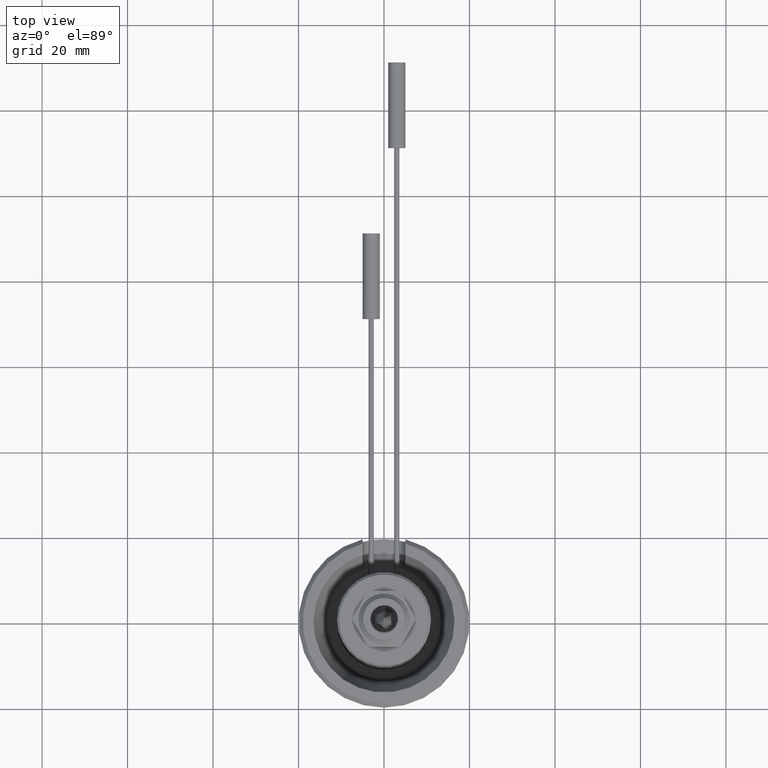
[diagram: clean part render]
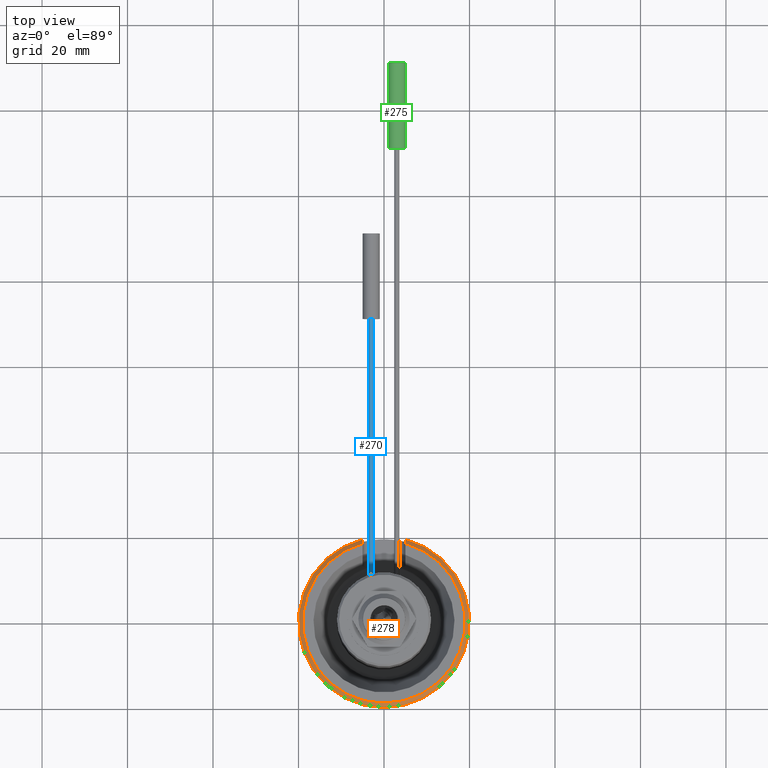
[diagram: same view with three faces highlighted in distinct colors, each labeled with its STEP entity id]
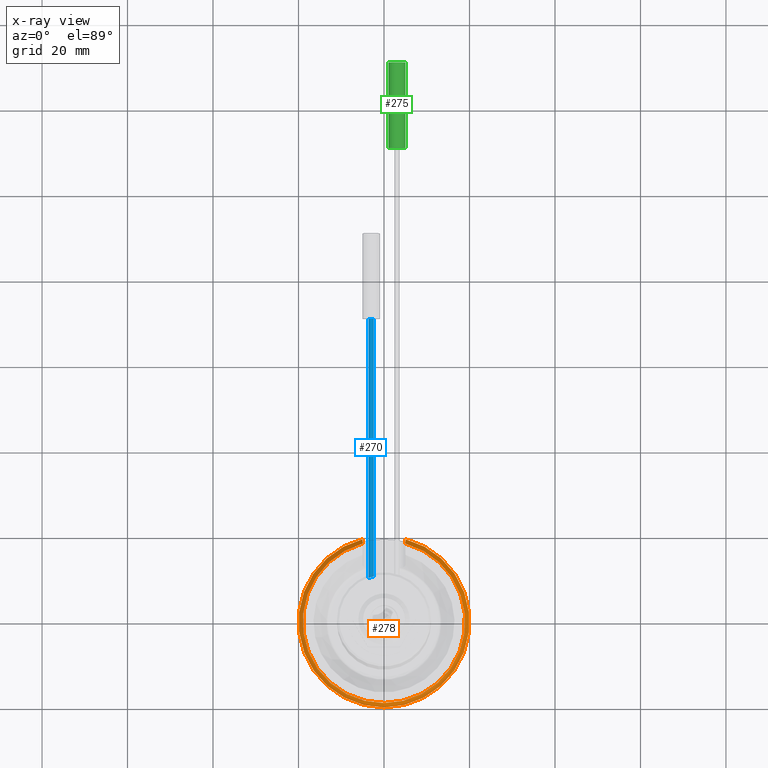
[diagram: x-ray of the same camera — body ghosted, the three highlighted faces saturated]
A machine part, top view with three faces highlighted in distinct colors.
The next image is the same camera in x-ray (body ghosted, the three faces saturated) — at least one of them is partly hidden behind the body in this view.
Their STEP definitions:

[orange] entity #278 — the highlighted conical surface has half-angle 45 deg.
#209=FACE_OUTER_BOUND('',#496,.T.);
#278=ADVANCED_FACE('',(#209),#306,.T.);
#306=CONICAL_SURFACE('',#1242,19.,44.9999999999999);
#341=B_SPLINE_CURVE_WITH_KNOTS('',3,(#2212,#2213,#2214,#2215),
 .UNSPECIFIED.,.F.,.F.,(4,4),(0.,1.),.UNSPECIFIED.);
#342=B_SPLINE_CURVE_WITH_KNOTS('',3,(#2218,#2219,#2220,#2221),
 .UNSPECIFIED.,.F.,.F.,(4,4),(0.,1.),.UNSPECIFIED.);
#496=EDGE_LOOP('',(#728,#729,#730,#731));
#728=ORIENTED_EDGE('',*,*,#1044,.F.);
#729=ORIENTED_EDGE('',*,*,#1038,.F.);
#730=ORIENTED_EDGE('',*,*,#1042,.F.);
#731=ORIENTED_EDGE('',*,*,#1046,.F.);
#902=VERTEX_POINT('',#2204);
#903=VERTEX_POINT('',#2206);
#904=VERTEX_POINT('',#2211);
#905=VERTEX_POINT('',#2222);
#1038=EDGE_CURVE('',#902,#903,#1113,.T.);
#1042=EDGE_CURVE('',#904,#902,#341,.T.);
#1044=EDGE_CURVE('',#903,#905,#342,.T.);
#1046=EDGE_CURVE('',#905,#904,#1114,.T.);
#1113=CIRCLE('',#1222,20.);
#1114=CIRCLE('',#1226,19.);
#1222=AXIS2_PLACEMENT_3D('',#2205,#1506,#1507);
#1226=AXIS2_PLACEMENT_3D('',#2225,#1519,#1520);
#1242=AXIS2_PLACEMENT_3D('',#2247,#1551,#1552);
#1506=DIRECTION('',(0.,0.,-1.));
#1507=DIRECTION('',(-1.,0.,0.));
#1519=DIRECTION('',(0.,0.,1.));
#1520=DIRECTION('',(-1.,0.,0.));
#1551=DIRECTION('',(0.,0.,-1.));
#1552=DIRECTION('',(-1.,0.,0.));
#2204=CARTESIAN_POINT('',(5.,19.3649167310371,24.));
#2205=CARTESIAN_POINT('',(0.,0.,24.));
#2206=CARTESIAN_POINT('',(-5.,19.3649167310371,24.));
#2211=CARTESIAN_POINT('',(5.,18.3303027798234,25.));
#2212=CARTESIAN_POINT('',(5.,18.3303027798234,25.));
#2213=CARTESIAN_POINT('',(5.,18.6754829325216,24.6669864888135));
#2214=CARTESIAN_POINT('',(5.,19.0203385698962,24.3336363698914));
#2215=CARTESIAN_POINT('',(5.,19.3649167310371,24.));
#2218=CARTESIAN_POINT('',(-5.,19.3649167310371,24.));
#2219=CARTESIAN_POINT('',(-5.,19.0203385698962,24.3336363698914));
#2220=CARTESIAN_POINT('',(-5.,18.6754829325216,24.6669864888135));
#2221=CARTESIAN_POINT('',(-5.,18.3303027798234,25.));
#2222=CARTESIAN_POINT('',(-5.,18.3303027798234,25.));
#2225=CARTESIAN_POINT('',(0.,0.,25.));
#2247=CARTESIAN_POINT('',(0.,0.,25.));

[blue] entity #270 — the highlighted cylindrical surface (bore or boss wall) has radius 0.6 mm, axis along (0, -1, 0).
#49=CYLINDRICAL_SURFACE('',#1229,0.6);
#270=ADVANCED_FACE('',(#389,#390),#49,.T.);
#323=B_SPLINE_CURVE_WITH_KNOTS('',3,(#1821,#1822,#1823,#1824,#1825,#1826,
#1827,#1828,#1829,#1830,#1831,#1832,#1833,#1834,#1835,#1836,#1837,#1838,
#1839,#1840,#1841,#1842,#1843,#1844,#1845,#1846,#1847,#1848,#1849,#1850,
#1851,#1852,#1853,#1854,#1855,#1856,#1857,#1858,#1859,#1860,#1861,#1862,
#1863,#1864,#1865,#1866,#1867,#1868,#1869,#1870,#1871,#1872,#1873,#1874,
#1875,#1876,#1877,#1878),.UNSPECIFIED.,.T.,.F.,(1,3,3,3,3,3,3,3,3,3,3,3,
3,3,3,3,3,3,3,3,3,1),(-0.0334760659607022,0.,0.0569276184208161,0.11388798171723,
0.170189178404946,0.223994773815214,0.275023318518955,0.32479447673683,
0.375435942673917,0.428444094596675,0.484019015101014,0.541000746772207,
0.597629402742916,0.652691800182208,0.705997861087889,0.758026453272304,
0.809447894307852,0.860920961920236,0.913080990616137,0.966523934039298,
1.,1.05692761842082),.UNSPECIFIED.);
#389=FACE_BOUND('',#482,.T.);
#390=FACE_BOUND('',#483,.T.);
#482=EDGE_LOOP('',(#714));
#483=EDGE_LOOP('',(#715));
#714=ORIENTED_EDGE('',*,*,#1047,.F.);
#715=ORIENTED_EDGE('',*,*,#958,.T.);
#845=VERTEX_POINT('',#1879);
#906=VERTEX_POINT('',#2228);
#958=EDGE_CURVE('',#845,#845,#323,.T.);
#1047=EDGE_CURVE('',#906,#906,#1115,.T.);
#1115=CIRCLE('',#1228,0.6);
#1228=AXIS2_PLACEMENT_3D('',#2227,#1523,#1524);
#1229=AXIS2_PLACEMENT_3D('',#2229,#1525,#1526);
#1523=DIRECTION('',(0.,1.,0.));
#1524=DIRECTION('',(1.,0.,0.));
#1525=DIRECTION('',(0.,-1.,0.));
#1526=DIRECTION('',(0.,0.,-1.));
#1821=CARTESIAN_POINT('',(-2.99999999999991,10.5830052442584,17.8999999999996));
#1822=CARTESIAN_POINT('',(-3.06981681712979,10.5632140368881,17.8999999999996));
#1823=CARTESIAN_POINT('',(-3.14038450659972,10.5424227737473,17.9124970988472));
#1824=CARTESIAN_POINT('',(-3.20591448775793,10.5224575217571,17.9364405765748));
#1825=CARTESIAN_POINT('',(-3.27146261720385,10.5024867404637,17.9603906853607));
#1826=CARTESIAN_POINT('',(-3.33382981085157,10.482784709257,17.9964888354275));
#1827=CARTESIAN_POINT('',(-3.3876192775582,10.4653731720525,18.0420138695711));
#1828=CARTESIAN_POINT('',(-3.44075567997196,10.4481730303855,18.0869861788774));
#1829=CARTESIAN_POINT('',(-3.48705359081985,10.4327279905899,18.1425344552966));
#1830=CARTESIAN_POINT('',(-3.5219399223933,10.4209375385832,18.2040629840455));
#1831=CARTESIAN_POINT('',(-3.55529059017035,10.4096660912832,18.262883084313));
#1832=CARTESIAN_POINT('',(-3.57915482046362,10.4014329403697,18.3289382027011));
#1833=CARTESIAN_POINT('',(-3.59097724228668,10.39734977989,18.3963375714194));
#1834=CARTESIAN_POINT('',(-3.60220237963041,10.39347290611,18.4603318343604));
#1835=CARTESIAN_POINT('',(-3.60289005001189,10.3932330618097,18.5273519849324));
#1836=CARTESIAN_POINT('',(-3.59296868398482,10.396661773661,18.5915867884212));
#1837=CARTESIAN_POINT('',(-3.58328137018419,10.4000095997109,18.6543062462681));
#1838=CARTESIAN_POINT('',(-3.56326033680526,10.4069246310301,18.716062895263));
#1839=CARTESIAN_POINT('',(-3.53478046430455,10.4165890323642,18.7720475234187));
#1840=CARTESIAN_POINT('',(-3.5057920601981,10.4264259995526,18.8290318032705));
#1841=CARTESIAN_POINT('',(-3.46732907570817,10.4393411650476,18.8815408372879));
#1842=CARTESIAN_POINT('',(-3.42260264746866,10.4539844613209,18.9259190091467));
#1843=CARTESIAN_POINT('',(-3.37580324197967,10.4693064440271,18.9723540172935));
#1844=CARTESIAN_POINT('',(-3.32095149567916,10.4868989700489,19.0111162295878));
#1845=CARTESIAN_POINT('',(-3.26232257871943,10.5051059676891,19.0396173317213));
#1846=CARTESIAN_POINT('',(-3.20090536269367,10.524178861497,19.0694739014394));
#1847=CARTESIAN_POINT('',(-3.1336983167243,10.5444253513799,19.088868258931));
#1848=CARTESIAN_POINT('',(-3.06598618430008,10.5640772771539,19.0963604811534));
#1849=CARTESIAN_POINT('',(-2.99661772046592,10.5842099159223,19.1040359733831));
#1850=CARTESIAN_POINT('',(-2.92478068762943,10.6042751642352,19.0994009585023));
#1851=CARTESIAN_POINT('',(-2.85653800704422,10.622626352005,19.0825964783426));
#1852=CARTESIAN_POINT('',(-2.78874380432905,10.6408569392718,19.0659024340187));
#1853=CARTESIAN_POINT('',(-2.72256330115455,10.6579214838165,19.0366771898524));
#1854=CARTESIAN_POINT('',(-2.66401663073763,10.6725355652325,18.9971068050018));
#1855=CARTESIAN_POINT('',(-2.60707805025483,10.6867482445353,18.9586232921649));
#1856=CARTESIAN_POINT('',(-2.55573615457011,10.6990643438209,18.9092216508164));
#1857=CARTESIAN_POINT('',(-2.51483547133773,10.7086695042895,18.8530090368927));
#1858=CARTESIAN_POINT('',(-2.47521965706406,10.7179729247491,18.798562306495));
#1859=CARTESIAN_POINT('',(-2.44427888225215,10.7250125539229,18.7361680065076));
#1860=CARTESIAN_POINT('',(-2.42492917387903,10.7293857467084,18.6711535712293));
#1861=CARTESIAN_POINT('',(-2.40603383409633,10.733656248466,18.6076658006813));
#1862=CARTESIAN_POINT('',(-2.39766002012662,10.7355128144675,18.5399010011442));
#1863=CARTESIAN_POINT('',(-2.40058147454186,10.7348595046272,18.4735910746605));
#1864=CARTESIAN_POINT('',(-2.40346989220308,10.7342135826266,18.4080310023314));
#1865=CARTESIAN_POINT('',(-2.41746976120564,10.7310967887802,18.3420888473413));
#1866=CARTESIAN_POINT('',(-2.44132064172829,10.725667975668,18.2811910087746));
#1867=CARTESIAN_POINT('',(-2.46520089217958,10.7202324775258,18.2202181807259));
#1868=CARTESIAN_POINT('',(-2.49958709380877,10.712325527574,18.162649352121));
#1869=CARTESIAN_POINT('',(-2.5414784747202,10.7023776406242,18.1130141981221));
#1870=CARTESIAN_POINT('',(-2.58393260100764,10.6922961193263,18.0627122732317));
#1871=CARTESIAN_POINT('',(-2.63520668837192,10.6798406558194,18.0192069291159));
#1872=CARTESIAN_POINT('',(-2.69099725920307,10.6657645647633,17.9856875403221));
#1873=CARTESIAN_POINT('',(-2.74815439445356,10.6513436863191,17.9513471094883));
#1874=CARTESIAN_POINT('',(-2.81154660528336,10.63483306504,17.9265595067595));
#1875=CARTESIAN_POINT('',(-2.87606909114748,10.6173549711284,17.912938563836));
#1876=CARTESIAN_POINT('',(-2.9168172067377,10.6063169681521,17.9043364811781));
#1877=CARTESIAN_POINT('',(-2.95854912963758,10.5947554615376,17.9));
#1878=CARTESIAN_POINT('',(-2.99999999999991,10.5830052442584,17.8999999999996));
#1879=CARTESIAN_POINT('',(-2.99999999999991,10.5830052442584,17.8999999999996));
#2227=CARTESIAN_POINT('',(-3.,71.,18.5));
#2228=CARTESIAN_POINT('',(-2.4,71.,18.5));
#2229=CARTESIAN_POINT('',(-3.,71.,18.5));

[green] entity #275 — the highlighted cylindrical surface (bore or boss wall) has radius 2 mm, axis along (0, -1, 0).
#52=CYLINDRICAL_SURFACE('',#1239,2.);
#275=ADVANCED_FACE('',(#397,#398),#52,.T.);
#397=FACE_BOUND('',#491,.T.);
#398=FACE_BOUND('',#492,.T.);
#491=EDGE_LOOP('',(#723));
#492=EDGE_LOOP('',(#724));
#723=ORIENTED_EDGE('',*,*,#1051,.F.);
#724=ORIENTED_EDGE('',*,*,#1052,.T.);
#910=VERTEX_POINT('',#2241);
#911=VERTEX_POINT('',#2243);
#1051=EDGE_CURVE('',#910,#910,#1119,.T.);
#1052=EDGE_CURVE('',#911,#911,#1120,.T.);
#1119=CIRCLE('',#1237,2.);
#1120=CIRCLE('',#1238,2.);
#1237=AXIS2_PLACEMENT_3D('',#2240,#1541,#1542);
#1238=AXIS2_PLACEMENT_3D('',#2242,#1543,#1544);
#1239=AXIS2_PLACEMENT_3D('',#2244,#1545,#1546);
#1541=DIRECTION('',(0.,1.,0.));
#1542=DIRECTION('',(1.,0.,0.));
#1543=DIRECTION('',(0.,1.,0.));
#1544=DIRECTION('',(1.,0.,0.));
#1545=DIRECTION('',(0.,-1.,0.));
#1546=DIRECTION('',(0.,0.,-1.));
#2240=CARTESIAN_POINT('',(3.,131.,18.5));
#2241=CARTESIAN_POINT('',(5.,131.,18.5));
#2242=CARTESIAN_POINT('',(3.,111.,18.5));
#2243=CARTESIAN_POINT('',(5.,111.,18.5));
#2244=CARTESIAN_POINT('',(3.,131.,18.5));